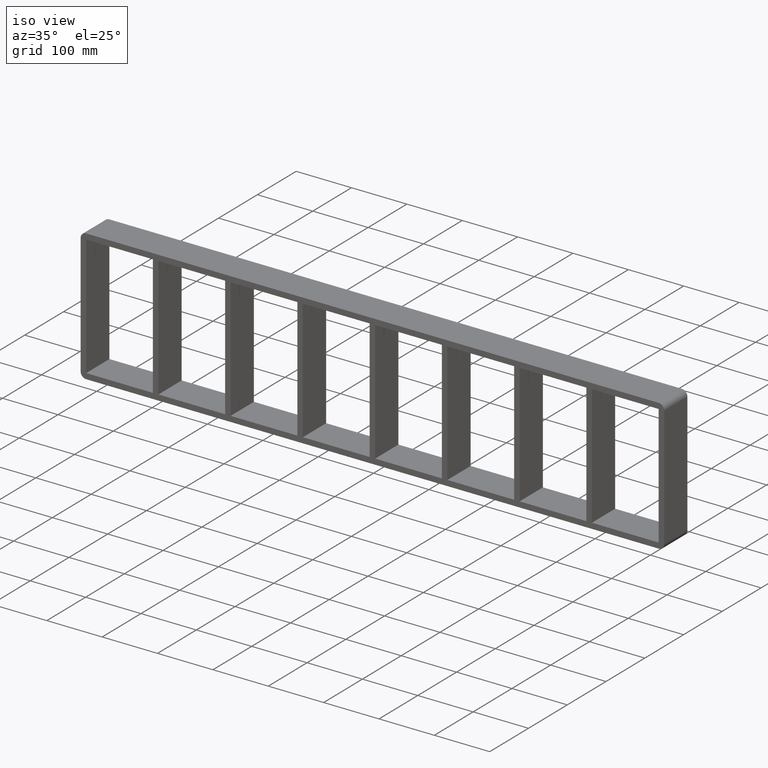
[diagram: clean part render]
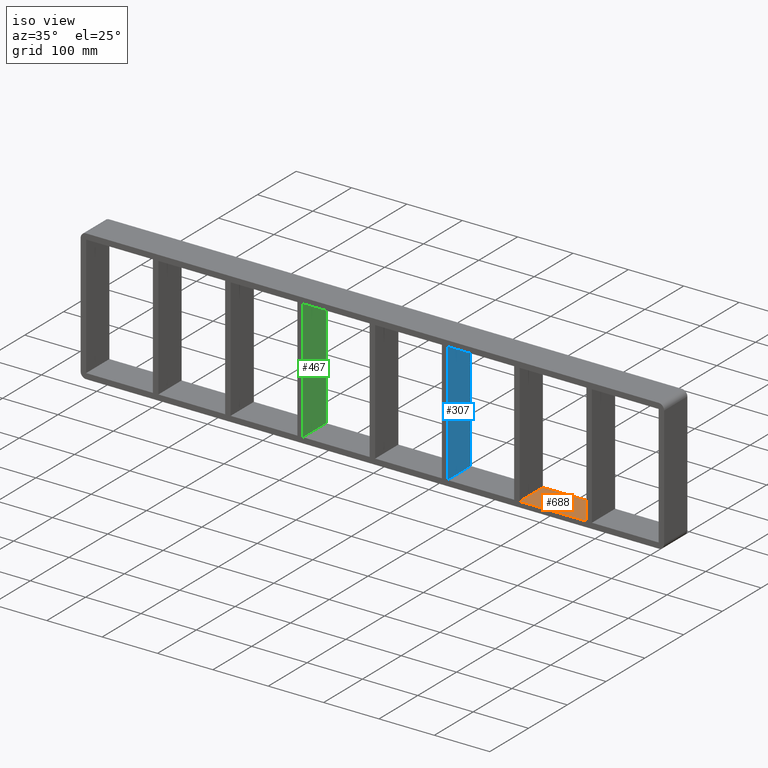
[diagram: same view with three faces highlighted in distinct colors, each labeled with its STEP entity id]
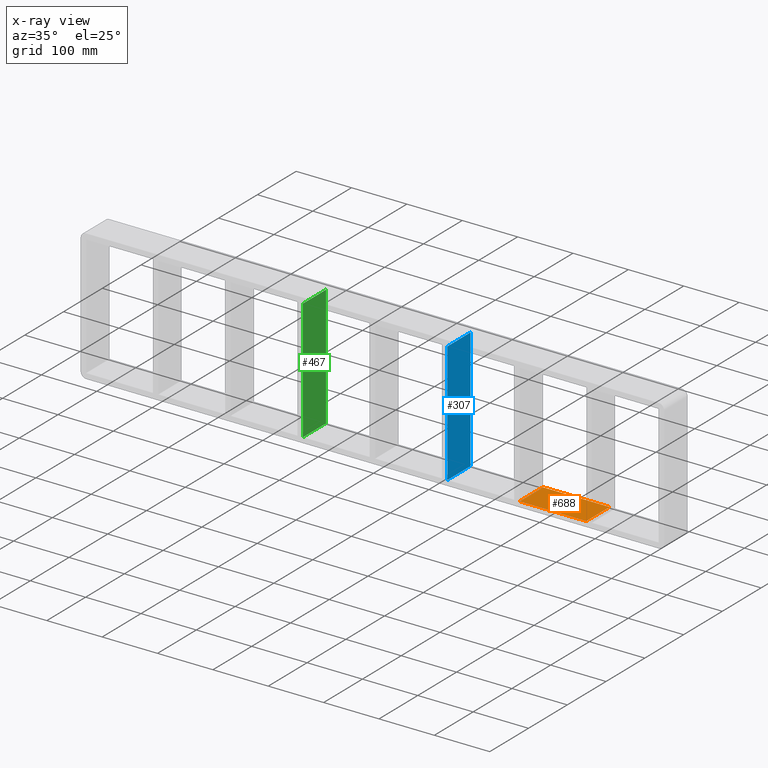
[diagram: x-ray of the same camera — body ghosted, the three highlighted faces saturated]
A machine part, iso view with three faces highlighted in distinct colors.
The next image is the same camera in x-ray (body ghosted, the three faces saturated) — at least one of them is partly hidden behind the body in this view.
Their STEP definitions:

[orange] entity #688 — the highlighted planar face has unit normal (0, 0, -1).
#73=CARTESIAN_POINT('',(386.49999999999892,-3.0,-109.0));
#74=VERTEX_POINT('',#73);
#91=CARTESIAN_POINT('',(386.49999999999892,57.0,-109.0));
#92=VERTEX_POINT('',#91);
#99=CARTESIAN_POINT('',(386.49999999999892,-3.0,-109.0));
#100=DIRECTION('',(0.0,1.0,0.0));
#101=VECTOR('',#100,60.000000000000007);
#102=LINE('',#99,#101);
#103=EDGE_CURVE('',#74,#92,#102,.T.);
#195=CARTESIAN_POINT('',(266.00000000000369,-3.0,-108.99999999998421));
#196=VERTEX_POINT('',#195);
#203=CARTESIAN_POINT('',(266.00000000000369,57.0,-108.99999999998423));
#204=VERTEX_POINT('',#203);
#205=CARTESIAN_POINT('',(266.00000000000369,57.000000000000007,-109.0));
#206=DIRECTION('',(0.0,-1.0,0.0));
#207=VECTOR('',#206,60.000000000000007);
#208=LINE('',#205,#207);
#209=EDGE_CURVE('',#204,#196,#208,.T.);
#667=CARTESIAN_POINT('',(517.0,0.0,-109.0));
#668=DIRECTION('',(0.0,0.0,-1.0));
#669=DIRECTION('',(-1.0,0.0,0.0));
#670=AXIS2_PLACEMENT_3D('',#667,#668,#669);
#671=PLANE('',#670);
#672=ORIENTED_EDGE('',*,*,#103,.T.);
#673=CARTESIAN_POINT('',(266.00000000000364,57.0,-109.0));
#674=DIRECTION('',(1.0,0.0,0.0));
#675=VECTOR('',#674,120.49999999999528);
#676=LINE('',#673,#675);
#677=EDGE_CURVE('',#204,#92,#676,.T.);
#678=ORIENTED_EDGE('',*,*,#677,.F.);
#679=ORIENTED_EDGE('',*,*,#209,.T.);
#680=CARTESIAN_POINT('',(386.49999999999892,-3.0,-109.0));
#681=DIRECTION('',(-1.0,0.0,0.0));
#682=VECTOR('',#681,120.49999999999528);
#683=LINE('',#680,#682);
#684=EDGE_CURVE('',#74,#196,#683,.T.);
#685=ORIENTED_EDGE('',*,*,#684,.F.);
#686=EDGE_LOOP('',(#672,#678,#679,#685));
#687=FACE_OUTER_BOUND('',#686,.T.);
#688=ADVANCED_FACE('',(#687),#671,.F.);

[blue] entity #307 — the highlighted planar face has unit normal (1, 0, 0).
#268=CARTESIAN_POINT('',(135.50000000000369,-3.0,108.99999999999997));
#269=DIRECTION('',(1.0,0.0,0.0));
#270=DIRECTION('',(0.0,0.0,-1.0));
#271=AXIS2_PLACEMENT_3D('',#268,#269,#270);
#272=PLANE('',#271);
#273=CARTESIAN_POINT('',(135.50000000000369,-3.0,108.99999999999997));
#274=VERTEX_POINT('',#273);
#275=CARTESIAN_POINT('',(135.50000000000369,-3.0,-108.99999999998421));
#276=VERTEX_POINT('',#275);
#277=CARTESIAN_POINT('',(135.50000000000369,-3.0,108.99999999999997));
#278=DIRECTION('',(0.0,0.0,-1.0));
#279=VECTOR('',#278,217.9999999999842);
#280=LINE('',#277,#279);
#281=EDGE_CURVE('',#274,#276,#280,.T.);
#282=ORIENTED_EDGE('',*,*,#281,.T.);
#283=CARTESIAN_POINT('',(135.50000000000369,57.0,-108.99999999998423));
#284=VERTEX_POINT('',#283);
#285=CARTESIAN_POINT('',(135.50000000000375,57.000000000000007,-109.0));
#286=DIRECTION('',(0.0,-1.0,0.0));
#287=VECTOR('',#286,60.000000000000007);
#288=LINE('',#285,#287);
#289=EDGE_CURVE('',#284,#276,#288,.T.);
#290=ORIENTED_EDGE('',*,*,#289,.F.);
#291=CARTESIAN_POINT('',(135.50000000000369,57.0,108.99999999999997));
#292=VERTEX_POINT('',#291);
#293=CARTESIAN_POINT('',(135.50000000000369,57.0,108.99999999999997));
#294=DIRECTION('',(0.0,0.0,-1.0));
#295=VECTOR('',#294,217.9999999999842);
#296=LINE('',#293,#295);
#297=EDGE_CURVE('',#292,#284,#296,.T.);
#298=ORIENTED_EDGE('',*,*,#297,.F.);
#299=CARTESIAN_POINT('',(135.50000000000375,-3.0,108.99999999999999));
#300=DIRECTION('',(0.0,1.0,0.0));
#301=VECTOR('',#300,60.000000000000007);
#302=LINE('',#299,#301);
#303=EDGE_CURVE('',#274,#292,#302,.T.);
#304=ORIENTED_EDGE('',*,*,#303,.F.);
#305=EDGE_LOOP('',(#282,#290,#298,#304));
#306=FACE_OUTER_BOUND('',#305,.T.);
#307=ADVANCED_FACE('',(#306),#272,.T.);

[green] entity #467 — the highlighted planar face has unit normal (1, 0, 0).
#428=CARTESIAN_POINT('',(-125.49999999999635,-3.0,108.99999999999997));
#429=DIRECTION('',(1.0,0.0,0.0));
#430=DIRECTION('',(0.0,0.0,-1.0));
#431=AXIS2_PLACEMENT_3D('',#428,#429,#430);
#432=PLANE('',#431);
#433=CARTESIAN_POINT('',(-125.49999999999635,-3.0,108.99999999999997));
#434=VERTEX_POINT('',#433);
#435=CARTESIAN_POINT('',(-125.49999999999635,-3.0,-108.99999999998421));
#436=VERTEX_POINT('',#435);
#437=CARTESIAN_POINT('',(-125.49999999999635,-3.0,108.99999999999997));
#438=DIRECTION('',(0.0,0.0,-1.0));
#439=VECTOR('',#438,217.9999999999842);
#440=LINE('',#437,#439);
#441=EDGE_CURVE('',#434,#436,#440,.T.);
#442=ORIENTED_EDGE('',*,*,#441,.T.);
#443=CARTESIAN_POINT('',(-125.49999999999635,57.0,-108.99999999998423));
#444=VERTEX_POINT('',#443);
#445=CARTESIAN_POINT('',(-125.49999999999635,57.000000000000007,-109.0));
#446=DIRECTION('',(0.0,-1.0,0.0));
#447=VECTOR('',#446,60.000000000000007);
#448=LINE('',#445,#447);
#449=EDGE_CURVE('',#444,#436,#448,.T.);
#450=ORIENTED_EDGE('',*,*,#449,.F.);
#451=CARTESIAN_POINT('',(-125.49999999999635,57.0,108.99999999999997));
#452=VERTEX_POINT('',#451);
#453=CARTESIAN_POINT('',(-125.49999999999635,57.0,108.99999999999997));
#454=DIRECTION('',(0.0,0.0,-1.0));
#455=VECTOR('',#454,217.9999999999842);
#456=LINE('',#453,#455);
#457=EDGE_CURVE('',#452,#444,#456,.T.);
#458=ORIENTED_EDGE('',*,*,#457,.F.);
#459=CARTESIAN_POINT('',(-125.49999999999635,-3.0,108.99999999999999));
#460=DIRECTION('',(0.0,1.0,0.0));
#461=VECTOR('',#460,60.000000000000007);
#462=LINE('',#459,#461);
#463=EDGE_CURVE('',#434,#452,#462,.T.);
#464=ORIENTED_EDGE('',*,*,#463,.F.);
#465=EDGE_LOOP('',(#442,#450,#458,#464));
#466=FACE_OUTER_BOUND('',#465,.T.);
#467=ADVANCED_FACE('',(#466),#432,.T.);